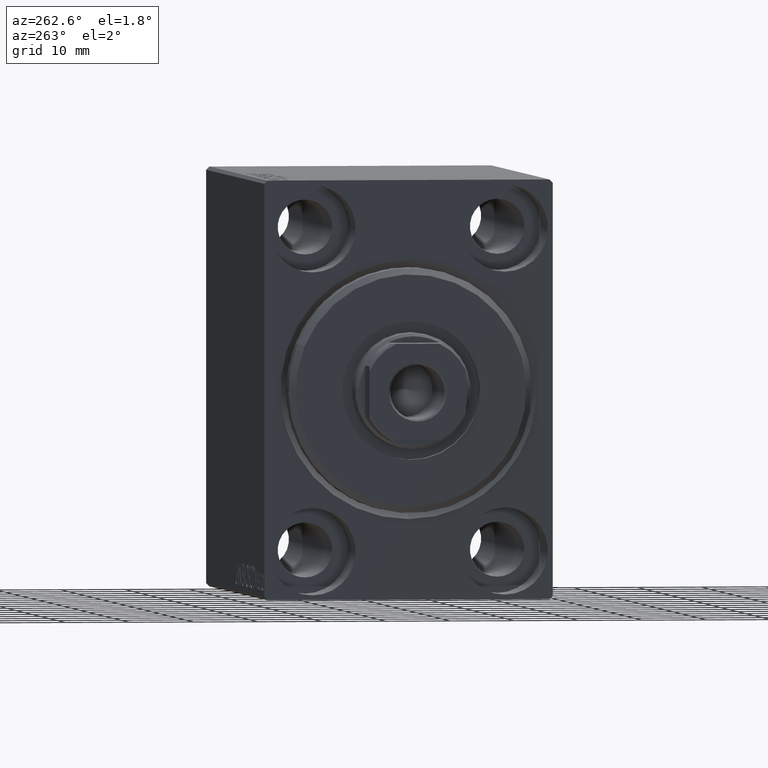
[diagram: clean part render]
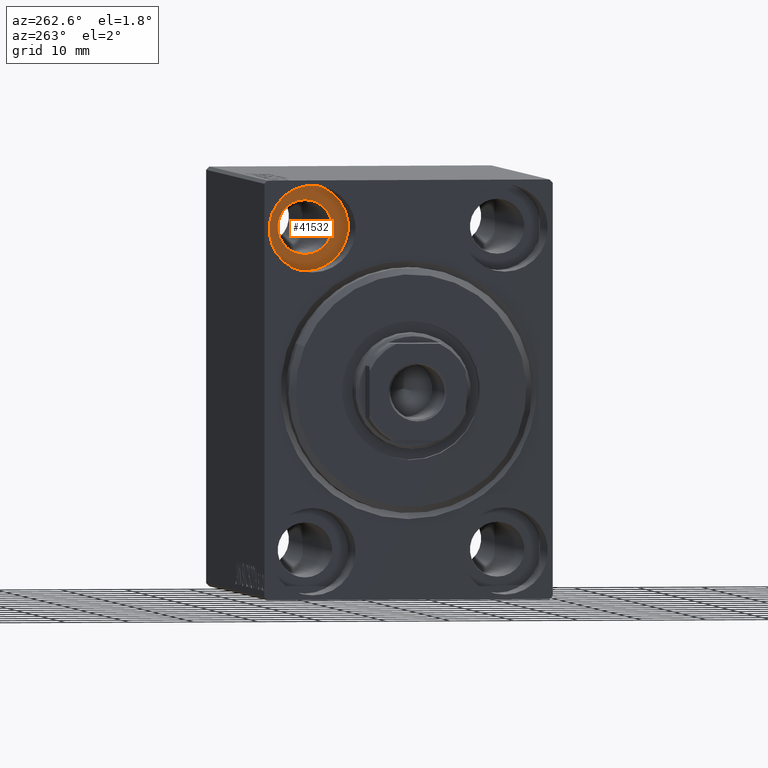
[diagram: same view with one face highlighted and labeled with its STEP entity id]
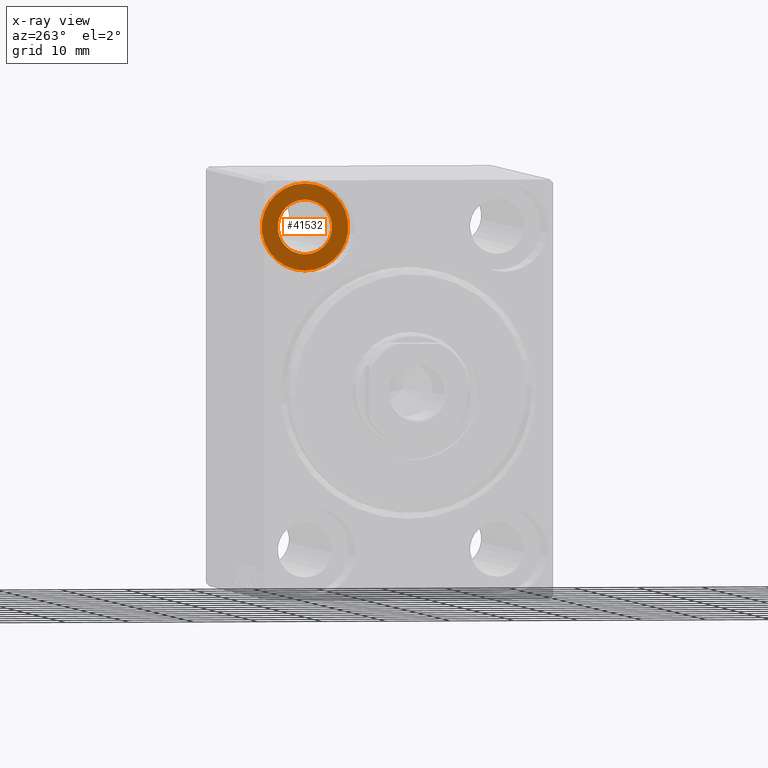
[diagram: x-ray of the same camera — body ghosted, the highlighted face saturated]
A machine part, auxiliary view. The second image highlights one B-rep face of the part: STEP entity #41532.
The next image is the same camera in x-ray: the body ghosted, the highlighted face saturated — about 0% of this face is hidden behind the body in this view.
In plain terms, the highlighted planar face has unit normal (-1, 0, 0).
Its self-contained STEP definition (entity closure, byte-faithful):
#1146 = DIRECTION ( 'NONE',  ( -1.000000000000000000, 0.000000000000000000, 0.000000000000000000 ) ) ;
#1759 = AXIS2_PLACEMENT_3D ( 'NONE', #26560, #8814, #2155 ) ;
#2155 = DIRECTION ( 'NONE',  ( 0.000000000000000000, 0.000000000000000000, 1.000000000000000000 ) ) ;
#3661 = VERTEX_POINT ( 'NONE', #38293 ) ;
#3860 = EDGE_CURVE ( 'NONE', #22146, #3661, #14210, .T. ) ;
#4138 = CIRCLE ( 'NONE', #15494, 6.749999999999999112 ) ;
#4478 = CARTESIAN_POINT ( 'NONE',  ( 9.000000000000001776, 15.00000000000000355, 25.00000000000000000 ) ) ;
#6861 = CARTESIAN_POINT ( 'NONE',  ( 9.000000000000000000, 15.00000000000000355, 31.75000000000000000 ) ) ;
#7586 = DIRECTION ( 'NONE',  ( 0.000000000000000000, 0.000000000000000000, 1.000000000000000000 ) ) ;
#8814 = DIRECTION ( 'NONE',  ( -1.000000000000000000, 0.000000000000000000, 0.000000000000000000 ) ) ;
#10994 = CIRCLE ( 'NONE', #1759, 6.749999999999999112 ) ;
#11249 = EDGE_CURVE ( 'NONE', #3661, #22146, #26599, .T. ) ;
#13107 = DIRECTION ( 'NONE',  ( -1.000000000000000000, 0.000000000000000000, 0.000000000000000000 ) ) ;
#13167 = EDGE_CURVE ( 'NONE', #30669, #22246, #10994, .T. ) ;
#14210 = CIRCLE ( 'NONE', #25577, 4.249999999999996447 ) ;
#15494 = AXIS2_PLACEMENT_3D ( 'NONE', #21025, #34175, #20806 ) ;
#16452 = DIRECTION ( 'NONE',  ( 0.000000000000000000, 0.000000000000000000, 1.000000000000000000 ) ) ;
#19791 = DIRECTION ( 'NONE',  ( 0.000000000000000000, 0.000000000000000000, 1.000000000000000000 ) ) ;
#20806 = DIRECTION ( 'NONE',  ( 0.000000000000000000, 0.000000000000000000, 1.000000000000000000 ) ) ;
#21025 = CARTESIAN_POINT ( 'NONE',  ( 9.000000000000000000, 15.00000000000000355, 25.00000000000000000 ) ) ;
#21848 = CARTESIAN_POINT ( 'NONE',  ( 9.000000000000001776, 15.00000000000000355, 20.75000000000000355 ) ) ;
#22088 = ORIENTED_EDGE ( 'NONE', *, *, #3860, .F. ) ;
#22146 = VERTEX_POINT ( 'NONE', #21848 ) ;
#22246 = VERTEX_POINT ( 'NONE', #43614 ) ;
#25577 = AXIS2_PLACEMENT_3D ( 'NONE', #33826, #13107, #19791 ) ;
#26560 = CARTESIAN_POINT ( 'NONE',  ( 9.000000000000000000, 15.00000000000000355, 25.00000000000000000 ) ) ;
#26598 = EDGE_CURVE ( 'NONE', #22246, #30669, #4138, .T. ) ;
#26599 = CIRCLE ( 'NONE', #37234, 4.249999999999996447 ) ;
#26692 = FACE_OUTER_BOUND ( 'NONE', #40411, .T. ) ;
#27151 = EDGE_LOOP ( 'NONE', ( #34602, #22088 ) ) ;
#30669 = VERTEX_POINT ( 'NONE', #6861 ) ;
#31896 = ORIENTED_EDGE ( 'NONE', *, *, #26598, .T. ) ;
#33826 = CARTESIAN_POINT ( 'NONE',  ( 9.000000000000001776, 15.00000000000000355, 25.00000000000000000 ) ) ;
#34175 = DIRECTION ( 'NONE',  ( -1.000000000000000000, 0.000000000000000000, 0.000000000000000000 ) ) ;
#34602 = ORIENTED_EDGE ( 'NONE', *, *, #11249, .F. ) ;
#36338 = AXIS2_PLACEMENT_3D ( 'NONE', #36702, #40931, #16452 ) ;
#36702 = CARTESIAN_POINT ( 'NONE',  ( 9.000000000000000000, 0.000000000000000000, 0.000000000000000000 ) ) ;
#37234 = AXIS2_PLACEMENT_3D ( 'NONE', #4478, #1146, #7586 ) ;
#38293 = CARTESIAN_POINT ( 'NONE',  ( 9.000000000000001776, 15.00000000000000355, 29.25000000000000000 ) ) ;
#40411 = EDGE_LOOP ( 'NONE', ( #42339, #31896 ) ) ;
#40480 = FACE_BOUND ( 'NONE', #27151, .T. ) ;
#40931 = DIRECTION ( 'NONE',  ( -1.000000000000000000, 0.000000000000000000, 0.000000000000000000 ) ) ;
#41532 = ADVANCED_FACE ( 'NONE', ( #40480, #26692 ), #43590, .T. ) ;
#42339 = ORIENTED_EDGE ( 'NONE', *, *, #13167, .T. ) ;
#43590 = PLANE ( 'NONE',  #36338 ) ;
#43614 = CARTESIAN_POINT ( 'NONE',  ( 9.000000000000000000, 15.00000000000000355, 18.25000000000000355 ) ) ;